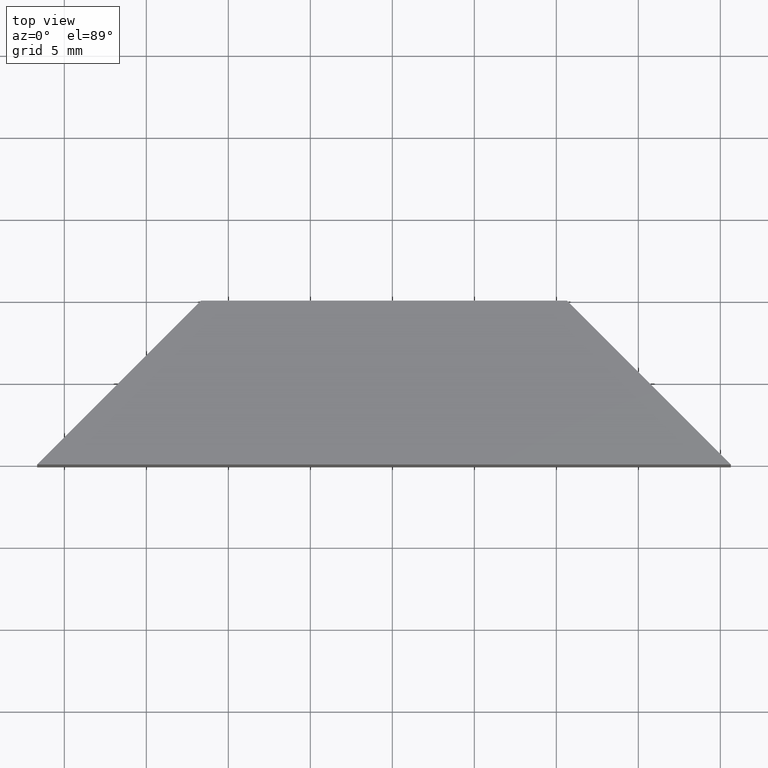
[diagram: clean part render]
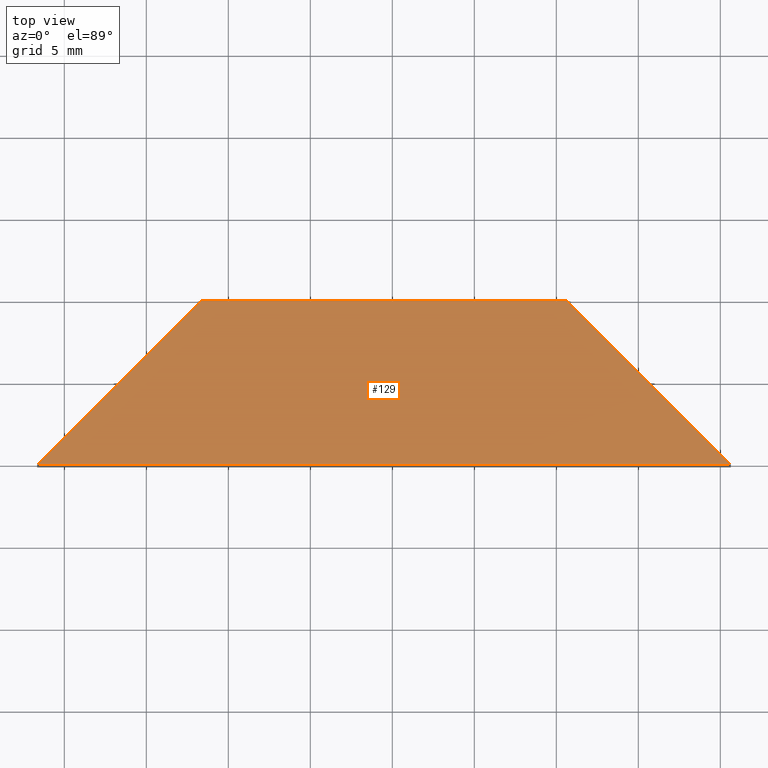
[diagram: same view with one face highlighted and labeled with its STEP entity id]
A machine part, top view. The second image highlights one B-rep face of the part: STEP entity #129.
In plain terms, the highlighted planar face has unit normal (0, -0, 1).
Its self-contained STEP definition (entity closure, byte-faithful):
#7 = ORIENTED_EDGE ( 'NONE', *, *, #100, .T. ) ;
#11 = VERTEX_POINT ( 'NONE', #163 ) ;
#12 = EDGE_CURVE ( 'NONE', #52, #11, #134, .T. ) ;
#16 = CARTESIAN_POINT ( 'NONE',  ( 70.64353380175859300, 59.92210381883445100, 10.00000000000000000 ) ) ;
#17 = VERTEX_POINT ( 'NONE', #260 ) ;
#39 = CARTESIAN_POINT ( 'NONE',  ( 38.34353380175870300, 49.92210381883444400, 10.00000000000000000 ) ) ;
#48 = CARTESIAN_POINT ( 'NONE',  ( 80.64353380175877800, 49.92210381883444400, 10.00000000000000000 ) ) ;
#52 = VERTEX_POINT ( 'NONE', #16 ) ;
#71 = DIRECTION ( 'NONE',  ( 0.0000000000000000000, -0.0000000000000000000, 1.000000000000000000 ) ) ;
#78 = LINE ( 'NONE', #116, #173 ) ;
#100 = EDGE_CURVE ( 'NONE', #11, #17, #265, .T. ) ;
#107 = ORIENTED_EDGE ( 'NONE', *, *, #267, .T. ) ;
#108 = AXIS2_PLACEMENT_3D ( 'NONE', #147, #71, #195 ) ;
#116 = CARTESIAN_POINT ( 'NONE',  ( 80.64353380175877800, 49.92210381883444400, 10.00000000000000000 ) ) ;
#121 = VECTOR ( 'NONE', #138, 1000.000000000000000 ) ;
#128 = VECTOR ( 'NONE', #261, 1000.000000000000000 ) ;
#129 = ADVANCED_FACE ( 'NONE', ( #277 ), #198, .T. ) ;
#132 = VERTEX_POINT ( 'NONE', #48 ) ;
#134 = LINE ( 'NONE', #282, #121 ) ;
#138 = DIRECTION ( 'NONE',  ( -1.000000000000000000, -0.0000000000000000000, -0.0000000000000000000 ) ) ;
#147 = CARTESIAN_POINT ( 'NONE',  ( 0.0000000000000000000, 0.0000000000000000000, 10.00000000000000000 ) ) ;
#151 = VECTOR ( 'NONE', #226, 1000.000000000000000 ) ;
#163 = CARTESIAN_POINT ( 'NONE',  ( 48.34353380175868900, 59.92210381883445100, 10.00000000000000000 ) ) ;
#173 = VECTOR ( 'NONE', #191, 1000.000000000000000 ) ;
#174 = ORIENTED_EDGE ( 'NONE', *, *, #12, .T. ) ;
#191 = DIRECTION ( 'NONE',  ( -0.7071067811865536800, 0.7071067811865414700, 0.0000000000000000000 ) ) ;
#194 = LINE ( 'NONE', #270, #151 ) ;
#195 = DIRECTION ( 'NONE',  ( 1.000000000000000000, 0.0000000000000000000, -0.0000000000000000000 ) ) ;
#198 = PLANE ( 'NONE',  #108 ) ;
#202 = EDGE_CURVE ( 'NONE', #17, #132, #194, .T. ) ;
#212 = ORIENTED_EDGE ( 'NONE', *, *, #202, .T. ) ;
#226 = DIRECTION ( 'NONE',  ( 1.000000000000000000, 0.0000000000000000000, 0.0000000000000000000 ) ) ;
#260 = CARTESIAN_POINT ( 'NONE',  ( 38.34353380175870300, 49.92210381883444400, 10.00000000000000000 ) ) ;
#261 = DIRECTION ( 'NONE',  ( -0.7071067811865470200, -0.7071067811865480200, -0.0000000000000000000 ) ) ;
#265 = LINE ( 'NONE', #39, #128 ) ;
#267 = EDGE_CURVE ( 'NONE', #132, #52, #78, .T. ) ;
#270 = CARTESIAN_POINT ( 'NONE',  ( 38.34353380175870300, 49.92210381883444400, 10.00000000000000000 ) ) ;
#277 = FACE_OUTER_BOUND ( 'NONE', #306, .T. ) ;
#282 = CARTESIAN_POINT ( 'NONE',  ( 48.34353380175868900, 59.92210381883445100, 10.00000000000000000 ) ) ;
#306 = EDGE_LOOP ( 'NONE', ( #7, #212, #107, #174 ) ) ;